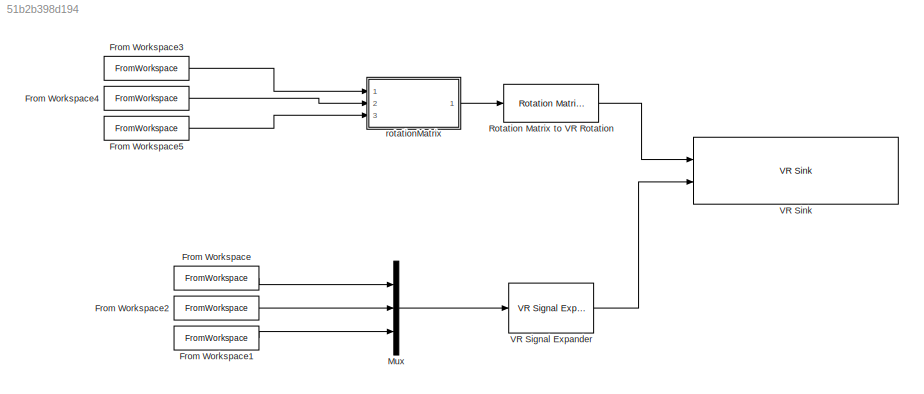
MODEL slx_51b2b398d194
KIND model
CONFIG AbsTol = auto
CONFIG EnableMultiTasking = off
CONFIG FixedStep = auto
CONFIG MaxStep = auto
CONFIG MinStep = auto
CONFIG RelTol = 1e-3
CONFIG SampleTimeConstraint = Unconstrained
CONFIG SolverName = FixedStepAuto
CONFIG StartTime = 0.0
CONFIG StopTime = meas.t(end)
BLOCK [FromWorkspace] From Workspace
  VariableName = xTPos_sim
BLOCK [FromWorkspace] From Workspace1
  VariableName = yTPos_sim
BLOCK [FromWorkspace] From Workspace2
  VariableName = zTPos_sim
BLOCK [FromWorkspace] From Workspace3
  VariableName = xRPos_sim
BLOCK [FromWorkspace] From Workspace4
  VariableName = yRPos_sim
BLOCK [FromWorkspace] From Workspace5
  VariableName = zRPos_sim
BLOCK [Mux] Mux
  DisplayOption = bar
  Inputs = 3
  Ports = [3, 1]
BLOCK [Reference] Rotation Matrix to VR Rotation  REF=vrlib/Utilities/Rotation Matrix
to VR Rotation
  Ports = [1, 1]
  SourceBlock = vrlib/Utilities/Rotation Matrix\nto VR Rotation
  SourceProductBaseCode = SL
  SourceType = Rotation Matrix to VR Rotation
BLOCK [Reference] VR Signal Expander  REF=vrlib/VR Signal Expander
  Ports = [1, 1]
  SourceBlock = vrlib/VR Signal Expander
  SourceProductBaseCode = SL
  SourceType = VR Signal Expander
BLOCK [Reference] VR Sink  REF=vrlib/VR Sink
  InstantiateOnLoad = on
  Ports = [2]
  SourceBlock = vrlib/VR Sink
  SourceProductBaseCode = SL
  SourceType = Virtual Reality Sink
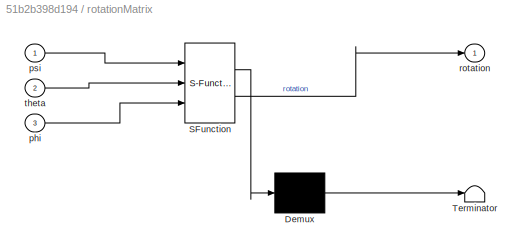
BLOCK [SubSystem] rotationMatrix
  ErrorFcn = Stateflow.Translate.translate
  PermitHierarchicalResolution = ExplicitOnly
  Ports = [3, 1]
  RequestExecContextInheritance = off
  SFBlockType = MATLAB Function
  TreatAsAtomicUnit = on
BLOCK [Demux] rotationMatrix/ Demux 
  Outputs = 1
  Ports = [1, 1]
BLOCK [S-Function] rotationMatrix/ SFunction 
  EnableBusSupport = on
  FunctionName = sf_sfun
  PortCounts = [3 2]
  Ports = [3, 2]
  SFcnIsStateOwnerBlock = off
  SFunctionDeploymentMode = off
  Tag = Stateflow S-Function 2
BLOCK [Terminator] rotationMatrix/ Terminator 
BLOCK [Inport] rotationMatrix/phi
  Port = 3
BLOCK [Inport] rotationMatrix/psi
BLOCK [Outport] rotationMatrix/rotation
BLOCK [Inport] rotationMatrix/theta
  Port = 2
LINE From Workspace1:1 -> Mux:3
LINE From Workspace2:1 -> Mux:2
LINE From Workspace3:1 -> rotationMatrix:1
LINE From Workspace4:1 -> rotationMatrix:2
LINE From Workspace5:1 -> rotationMatrix:3
LINE From Workspace:1 -> Mux:1
LINE Mux:1 -> VR Signal Expander:1
LINE Rotation Matrix to VR Rotation:1 -> VR Sink:1
LINE VR Signal Expander:1 -> VR Sink:2
LINE rotationMatrix:1 -> Rotation Matrix to VR Rotation:1
CHART rotationMatrix states=1 transitions=1
  STATE_LABEL 'eML_blk_kernel()'
  STATE_LABEL 'SCRIPT:\nfunction rotation = fcn(psi,theta,phi)%yaw pitch roll\n\n%yaw matrix\nR3   = [ cos(psi) sin(psi) 0; \n             -sin(psi) cos(psi) 0; \n             0 0 1];\n%pitch matrix\nR2   = [cos(theta) 0 -sin(theta); \n        0  1           0; \n        sin(theta) 0  cos(theta)];\n%roll matrix         \nR1    = [1        0          0; \n         0  cos(phi)  sin(phi);\n         0 -sin(phi)  cos(phi)];\n      ...<+41ch>'
CHART  states=0 transitions=0
